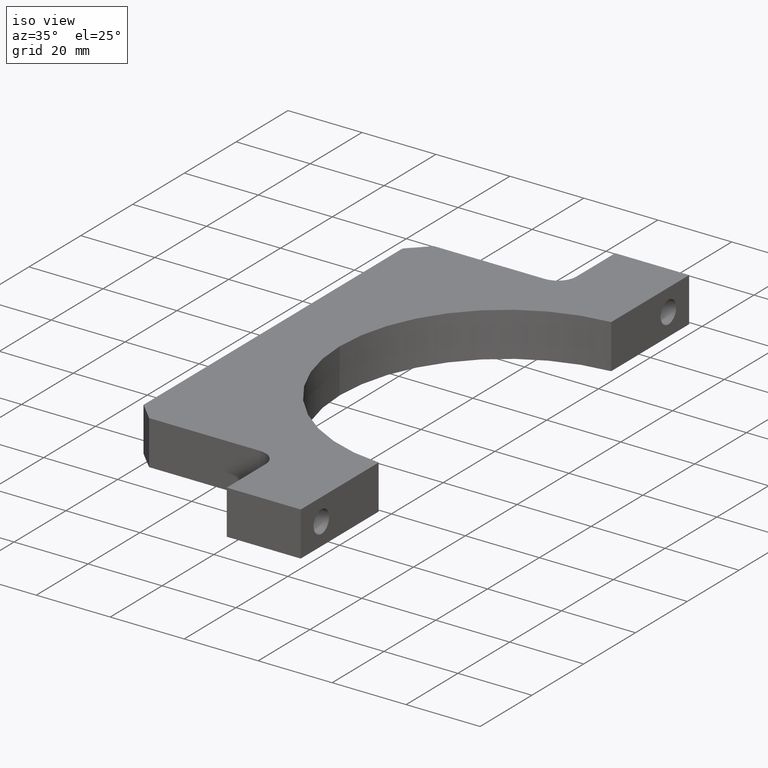
[diagram: clean part render]
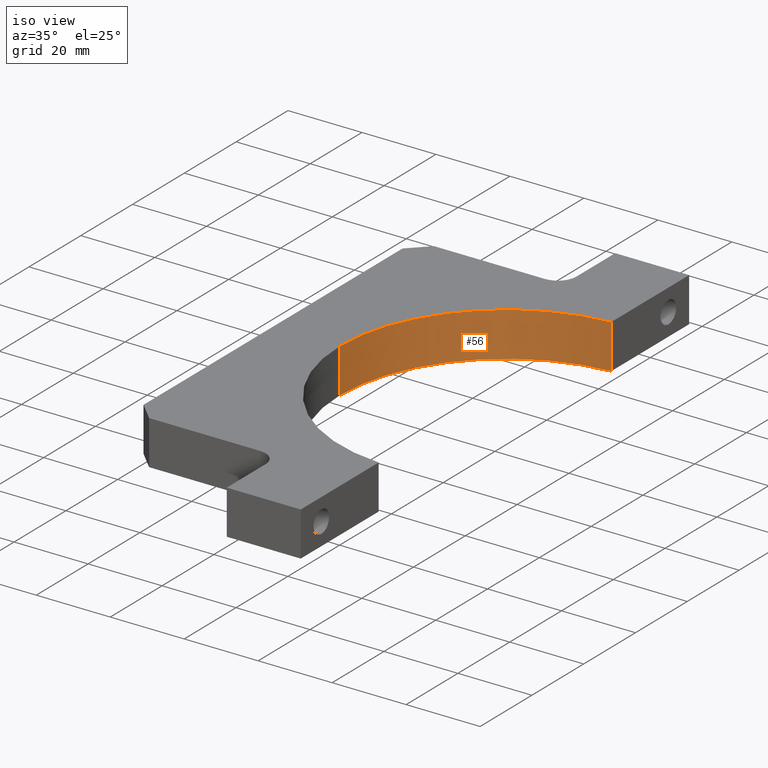
[diagram: same view with one face highlighted and labeled with its STEP entity id]
A machine part, iso view. The second image highlights one B-rep face of the part: STEP entity #56.
In plain terms, the highlighted cylindrical surface (partial cylindrical patch) has radius 45 mm, axis along (-0, -0, -1).
Its self-contained STEP definition (entity closure, byte-faithful):
#4 = CARTESIAN_POINT ( 'NONE',  ( 60.00000000000000700, 44.89988864128730500, 6.000000000000000000 ) ) ;
#12 = CARTESIAN_POINT ( 'NONE',  ( 17.99999999999999600, 0.0000000000000000000, 6.000000000000000000 ) ) ;
#21 = DIRECTION ( 'NONE',  ( -0.0000000000000000000, -0.0000000000000000000, -1.000000000000000000 ) ) ;
#24 = DIRECTION ( 'NONE',  ( 1.000000000000000000, 0.0000000000000000000, 0.0000000000000000000 ) ) ;
#26 = DIRECTION ( 'NONE',  ( -0.0000000000000000000, -0.0000000000000000000, -1.000000000000000000 ) ) ;
#31 = CARTESIAN_POINT ( 'NONE',  ( 63.00000000000000000, 0.0000000000000000000, -6.000000000000000000 ) ) ;
#50 = CARTESIAN_POINT ( 'NONE',  ( 60.00000000000000700, 44.89988864128730500, 6.000000000000000000 ) ) ;
#56 = ADVANCED_FACE ( 'NONE', ( #319 ), #313, .F. ) ;
#67 = AXIS2_PLACEMENT_3D ( 'NONE', #31, #26, #24 ) ;
#68 = DIRECTION ( 'NONE',  ( -0.0000000000000000000, -0.0000000000000000000, -1.000000000000000000 ) ) ;
#74 = DIRECTION ( 'NONE',  ( 1.000000000000000000, 0.0000000000000000000, 0.0000000000000000000 ) ) ;
#76 = DIRECTION ( 'NONE',  ( -0.0000000000000000000, -0.0000000000000000000, -1.000000000000000000 ) ) ;
#78 = CARTESIAN_POINT ( 'NONE',  ( 63.00000000000000000, 0.0000000000000000000, 6.000000000000000000 ) ) ;
#107 = CARTESIAN_POINT ( 'NONE',  ( 17.99999999999999600, 0.0000000000000000000, 6.000000000000000000 ) ) ;
#125 = LINE ( 'NONE', #107, #126 ) ;
#126 = VECTOR ( 'NONE', #68, 1000.000000000000000 ) ;
#143 = VECTOR ( 'NONE', #21, 1000.000000000000000 ) ;
#144 = LINE ( 'NONE', #50, #143 ) ;
#149 = CIRCLE ( 'NONE', #67, 45.00000000000001400 ) ;
#151 = CIRCLE ( 'NONE', #173, 45.00000000000001400 ) ;
#173 = AXIS2_PLACEMENT_3D ( 'NONE', #78, #76, #74 ) ;
#269 = EDGE_LOOP ( 'NONE', ( #343, #390, #478, #546 ) ) ;
#313 = CYLINDRICAL_SURFACE ( 'NONE', #428, 45.00000000000000700 ) ;
#319 = FACE_OUTER_BOUND ( 'NONE', #269, .T. ) ;
#343 = ORIENTED_EDGE ( 'NONE', *, *, #624, .F. ) ;
#390 = ORIENTED_EDGE ( 'NONE', *, *, #628, .T. ) ;
#394 = VERTEX_POINT ( 'NONE', #510 ) ;
#428 = AXIS2_PLACEMENT_3D ( 'NONE', #598, #712, #703 ) ;
#445 = CARTESIAN_POINT ( 'NONE',  ( 17.99999999999999600, 0.0000000000000000000, -6.000000000000000000 ) ) ;
#451 = VERTEX_POINT ( 'NONE', #445 ) ;
#478 = ORIENTED_EDGE ( 'NONE', *, *, #634, .T. ) ;
#510 = CARTESIAN_POINT ( 'NONE',  ( 60.00000000000000700, 44.89988864128730500, -6.000000000000000000 ) ) ;
#546 = ORIENTED_EDGE ( 'NONE', *, *, #647, .F. ) ;
#598 = CARTESIAN_POINT ( 'NONE',  ( 63.00000000000000000, 0.0000000000000000000, 6.000000000000000000 ) ) ;
#624 = EDGE_CURVE ( 'NONE', #663, #662, #151, .T. ) ;
#628 = EDGE_CURVE ( 'NONE', #663, #451, #125, .T. ) ;
#634 = EDGE_CURVE ( 'NONE', #451, #394, #149, .T. ) ;
#647 = EDGE_CURVE ( 'NONE', #662, #394, #144, .T. ) ;
#662 = VERTEX_POINT ( 'NONE', #4 ) ;
#663 = VERTEX_POINT ( 'NONE', #12 ) ;
#703 = DIRECTION ( 'NONE',  ( -1.000000000000000000, 0.0000000000000000000, 0.0000000000000000000 ) ) ;
#712 = DIRECTION ( 'NONE',  ( -0.0000000000000000000, -0.0000000000000000000, -1.000000000000000000 ) ) ;